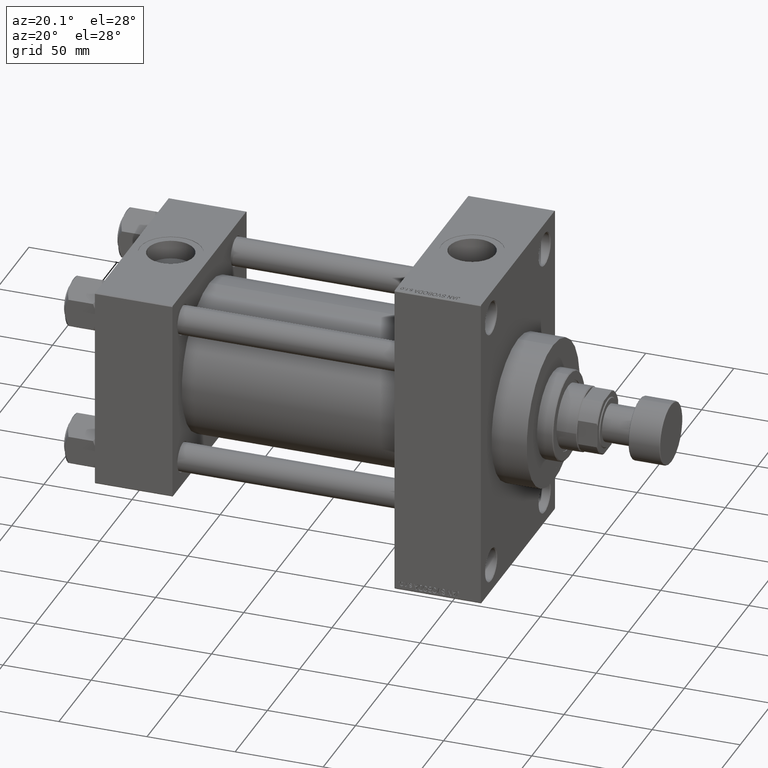
[diagram: clean part render]
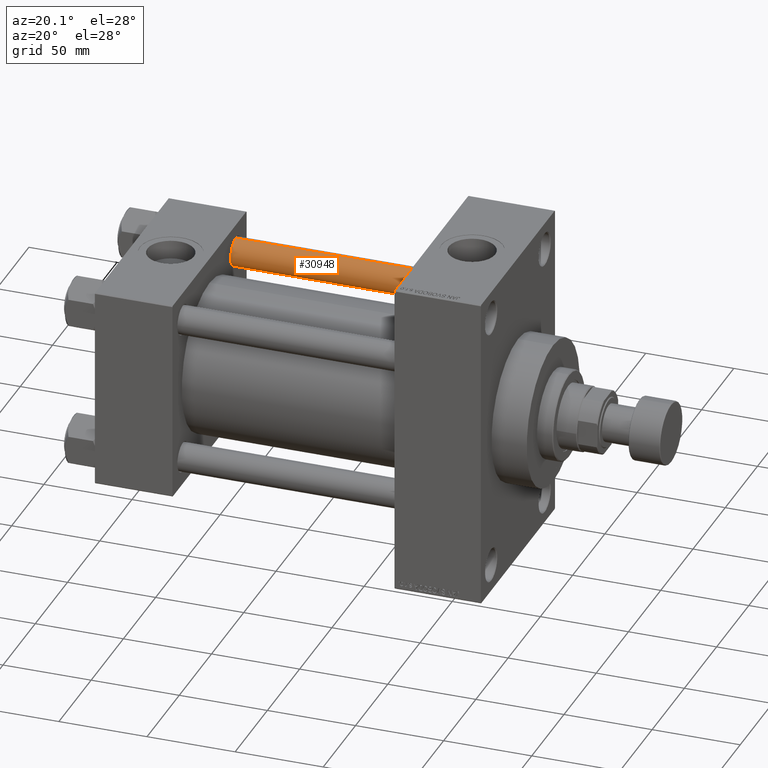
[diagram: same view with one face highlighted and labeled with its STEP entity id]
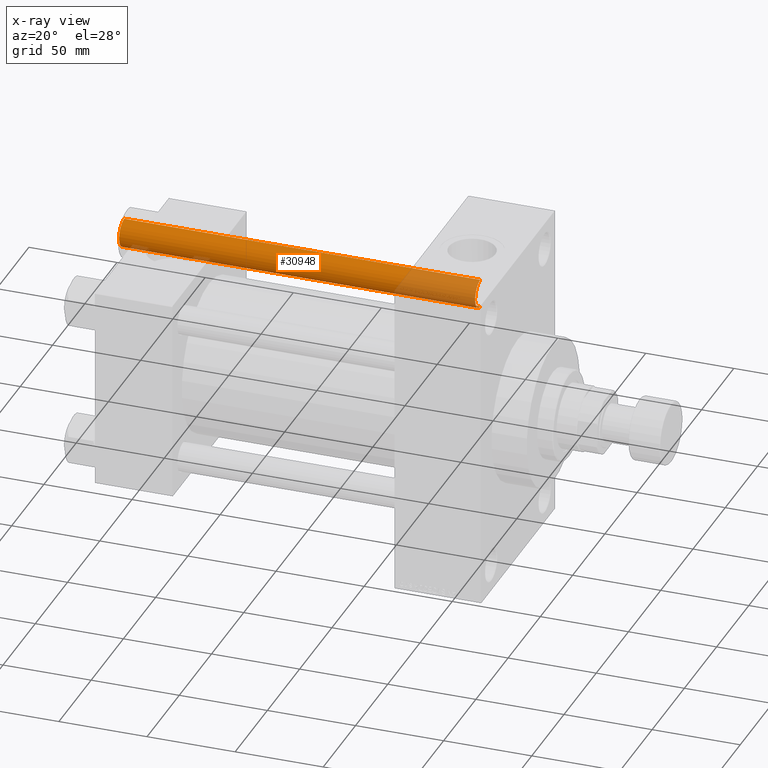
[diagram: x-ray of the same camera — body ghosted, the highlighted face saturated]
A machine part, auxiliary view. The second image highlights one B-rep face of the part: STEP entity #30948.
The next image is the same camera in x-ray: the body ghosted, the highlighted face saturated — about 22% of this face is hidden behind the body in this view.
In plain terms, the highlighted cylindrical surface (edge-blend (fillet) strip) has radius 8 mm, axis along (1, -0, -0).
Its self-contained STEP definition (entity closure, byte-faithful):
#629 = AXIS2_PLACEMENT_3D ( 'NONE', #35649, #47576, #14227 ) ;
#960 = DIRECTION ( 'NONE',  ( -0.000000000000000000, -0.000000000000000000, -1.000000000000000000 ) ) ;
#1348 = EDGE_CURVE ( 'NONE', #19764, #4449, #47086, .T. ) ;
#3268 = ORIENTED_EDGE ( 'NONE', *, *, #45702, .T. ) ;
#4112 = CARTESIAN_POINT ( 'NONE',  ( 8.000000000000000000, 9.797174393178823685E-16, 0.5000000000001947331 ) ) ;
#4449 = VERTEX_POINT ( 'NONE', #4112 ) ;
#6930 = FACE_OUTER_BOUND ( 'NONE', #14258, .T. ) ;
#7539 = VERTEX_POINT ( 'NONE', #21914 ) ;
#12226 = DIRECTION ( 'NONE',  ( 1.000000000000000000, 0.000000000000000000, 0.000000000000000000 ) ) ;
#14227 = DIRECTION ( 'NONE',  ( -1.000000000000000000, 0.000000000000000000, 0.000000000000000000 ) ) ;
#14258 = EDGE_LOOP ( 'NONE', ( #45972, #16889, #3268, #37978 ) ) ;
#15193 = EDGE_CURVE ( 'NONE', #19764, #24543, #21942, .T. ) ;
#16889 = ORIENTED_EDGE ( 'NONE', *, *, #15193, .T. ) ;
#18518 = CARTESIAN_POINT ( 'NONE',  ( 0.000000000000000000, 0.000000000000000000, 202.5000000000000853 ) ) ;
#19764 = VERTEX_POINT ( 'NONE', #43872 ) ;
#21554 = CIRCLE ( 'NONE', #30112, 8.000000000000000000 ) ;
#21914 = CARTESIAN_POINT ( 'NONE',  ( -8.000000000000000000, 0.000000000000000000, 0.5000000000001947331 ) ) ;
#21942 = CIRCLE ( 'NONE', #33609, 8.000000000000000000 ) ;
#22972 = CARTESIAN_POINT ( 'NONE',  ( -8.000000000000000000, 0.000000000000000000, 203.0000000000000000 ) ) ;
#24543 = VERTEX_POINT ( 'NONE', #33367 ) ;
#26649 = EDGE_CURVE ( 'NONE', #7539, #4449, #21554, .T. ) ;
#27438 = CARTESIAN_POINT ( 'NONE',  ( 8.000000000000000000, 9.797174393178823685E-16, 203.0000000000000000 ) ) ;
#27658 = VECTOR ( 'NONE', #960, 1000.000000000000000 ) ;
#30112 = AXIS2_PLACEMENT_3D ( 'NONE', #30710, #44846, #12226 ) ;
#30710 = CARTESIAN_POINT ( 'NONE',  ( 0.000000000000000000, 0.000000000000000000, 0.5000000000001947331 ) ) ;
#30739 = LINE ( 'NONE', #22972, #42016 ) ;
#30948 = ADVANCED_FACE ( 'NONE', ( #6930 ), #32231, .T. ) ;
#32231 = CYLINDRICAL_SURFACE ( 'NONE', #629, 8.000000000000000000 ) ;
#33367 = CARTESIAN_POINT ( 'NONE',  ( -8.000000000000000000, 0.000000000000000000, 202.5000000000000853 ) ) ;
#33609 = AXIS2_PLACEMENT_3D ( 'NONE', #18518, #44565, #45067 ) ;
#33904 = DIRECTION ( 'NONE',  ( -0.000000000000000000, -0.000000000000000000, -1.000000000000000000 ) ) ;
#35649 = CARTESIAN_POINT ( 'NONE',  ( 0.000000000000000000, 0.000000000000000000, 203.0000000000000000 ) ) ;
#37978 = ORIENTED_EDGE ( 'NONE', *, *, #26649, .T. ) ;
#42016 = VECTOR ( 'NONE', #33904, 1000.000000000000000 ) ;
#43872 = CARTESIAN_POINT ( 'NONE',  ( 8.000000000000000000, 9.797174393178823685E-16, 202.5000000000000853 ) ) ;
#44565 = DIRECTION ( 'NONE',  ( 0.000000000000000000, 0.000000000000000000, -1.000000000000000000 ) ) ;
#44846 = DIRECTION ( 'NONE',  ( -0.000000000000000000, -0.000000000000000000, 1.000000000000000000 ) ) ;
#45067 = DIRECTION ( 'NONE',  ( 1.000000000000000000, 0.000000000000000000, 0.000000000000000000 ) ) ;
#45702 = EDGE_CURVE ( 'NONE', #24543, #7539, #30739, .T. ) ;
#45972 = ORIENTED_EDGE ( 'NONE', *, *, #1348, .F. ) ;
#47086 = LINE ( 'NONE', #27438, #27658 ) ;
#47576 = DIRECTION ( 'NONE',  ( -0.000000000000000000, -0.000000000000000000, -1.000000000000000000 ) ) ;